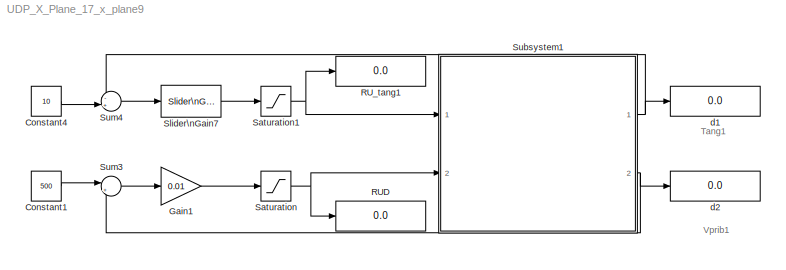
MODEL UDP_X_Plane_17_x_plane9
KIND model
BLOCK [Constant] Constant1
  LockScale = on
  OutDataTypeStr = single
  SID = 153
  Value = 500
BLOCK [Constant] Constant4
  LockScale = on
  OutDataTypeStr = single
  SID = 1
  Value = 10
BLOCK [Gain] Gain1
  Gain = 0.01
  OutDataTypeStr = Inherit: Inherit via internal rule
  ParamDataTypeStr = Inherit: Inherit via internal rule
  SID = 4
  SaturateOnIntegerOverflow = off
BLOCK [Display] RUD
  Decimation = 1
  Lockdown = off
  Ports = [1]
  SID = 7
BLOCK [Display] RU_tang1
  Decimation = 1
  Lockdown = off
  Ports = [1]
  SID = 8
BLOCK [Saturate] Saturation
  InputPortMap = u0
  LowerLimit = 0
  Ports = [1, 1]
  SID = 9
  UpperLimit = 1
BLOCK [Saturate] Saturation1
  InputPortMap = u0
  LowerLimit = -1
  Ports = [1, 1]
  SID = 10
  UpperLimit = 1
BLOCK [Reference] Slider\nGain7  REF=simulink/Math\nOperations/Slider\nGain
  Ports = [1, 1]
  SID = 14
  SourceBlock = simulink/Math\nOperations/Slider\nGain
  SourceType = Slider Gain
  gain = 0.040092
  high = 0.1
  low = -0.1
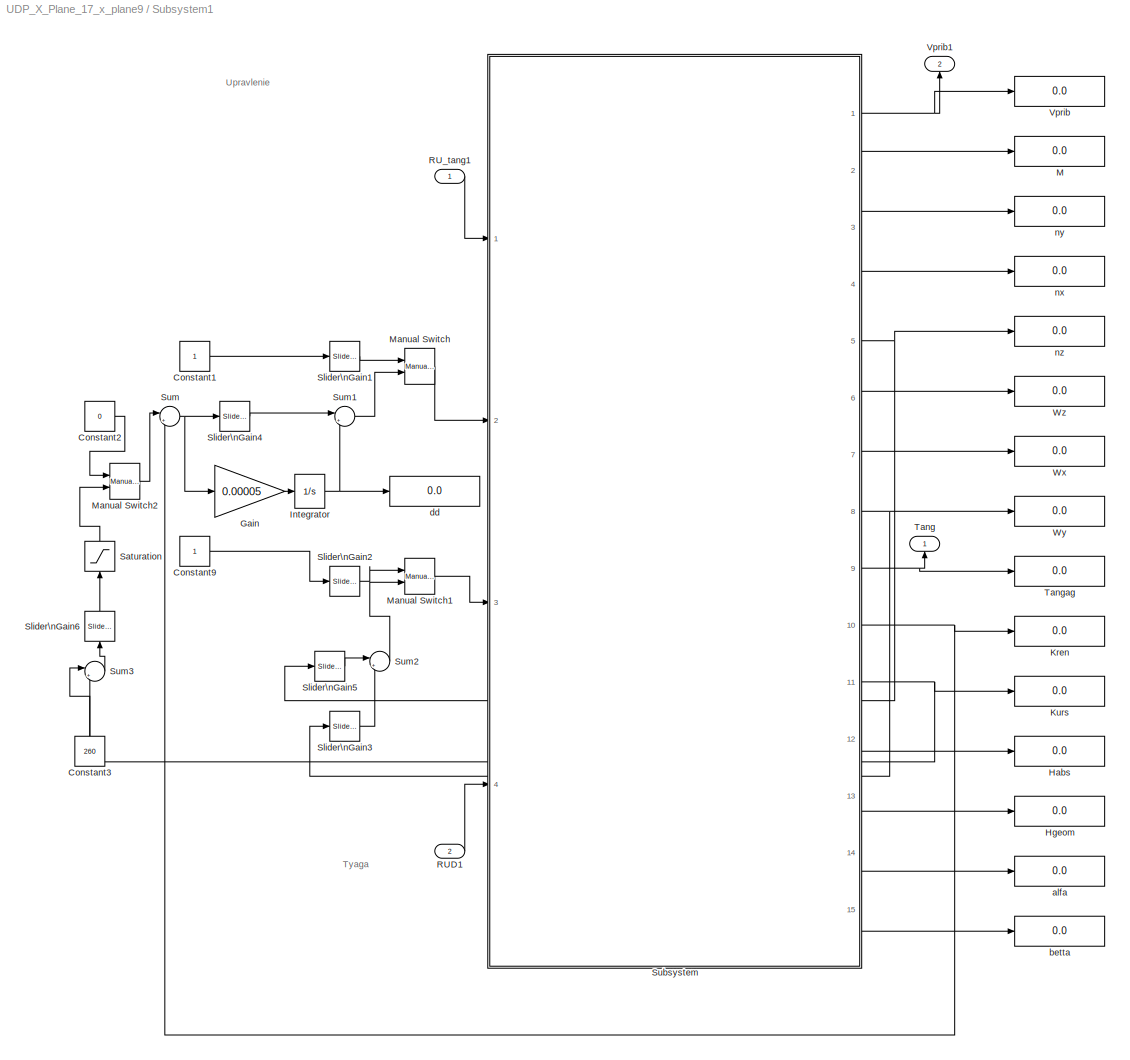
BLOCK [SubSystem] Subsystem1
  FunctionWithSeparateData = off
  MaskHideContents = off
  MinAlgLoopOccurrences = off
  Opaque = off
  Ports = [2, 2]
  PropExecContextOutsideSubsystem = off
  RTWSystemCode = Auto
  RequestExecContextInheritance = off
  SID = 15
BLOCK [Constant] Subsystem1/Constant1
  LockScale = on
  OutDataTypeStr = single
  SID = 18
BLOCK [Constant] Subsystem1/Constant2
  LockScale = on
  OutDataTypeStr = single
  SID = 19
  Value = 0
BLOCK [Constant] Subsystem1/Constant3
  LockScale = on
  OutDataTypeStr = single
  SID = 20
  Value = 260
BLOCK [Constant] Subsystem1/Constant9
  LockScale = on
  OutDataTypeStr = single
  SID = 21
BLOCK [Gain] Subsystem1/Gain
  Gain = 0.00005
  OutDataTypeStr = Inherit: Inherit via internal rule
  ParamDataTypeStr = Inherit: Inherit via internal rule
  SID = 22
  SaturateOnIntegerOverflow = off
BLOCK [Display] Subsystem1/Habs
  Decimation = 1
  Lockdown = off
  Ports = [1]
  SID = 23
BLOCK [Display] Subsystem1/Hgeom
  Decimation = 1
  Lockdown = off
  Ports = [1]
  SID = 24
BLOCK [Integrator] Subsystem1/Integrator
  LimitOutput = on
  LowerSaturationLimit = -1
  Ports = [1, 1]
  SID = 25
  UpperSaturationLimit = 1
BLOCK [Display] Subsystem1/Kren
  Decimation = 1
  Lockdown = off
  Ports = [1]
  SID = 26
BLOCK [Display] Subsystem1/Kurs
  Decimation = 1
  Lockdown = off
  Ports = [1]
  SID = 27
BLOCK [Display] Subsystem1/M
  Decimation = 1
  Lockdown = off
  Ports = [1]
  SID = 28
BLOCK [Reference] Subsystem1/Manual Switch  REF=simulink/Signal\nRouting/Manual Switch
  Ports = [2, 1]
  SID = 29
  SourceBlock = simulink/Signal\nRouting/Manual Switch
  SourceType = Manual Switch
  action = 0
  sw = 0
  varsize = off
BLOCK [Reference] Subsystem1/Manual Switch1  REF=simulink/Signal\nRouting/Manual Switch
  Ports = [2, 1]
  SID = 30
  SourceBlock = simulink/Signal\nRouting/Manual Switch
  SourceType = Manual Switch
  action = 0
  sw = 1
  varsize = off
BLOCK [Reference] Subsystem1/Manual Switch2  REF=simulink/Signal\nRouting/Manual Switch
  Ports = [2, 1]
  SID = 31
  SourceBlock = simulink/Signal\nRouting/Manual Switch
  SourceType = Manual Switch
  action = 0
  sw = 1
  varsize = off
BLOCK [Inport] Subsystem1/RUD1
  IconDisplay = Port number
  Port = 2
  SID = 17
BLOCK [Inport] Subsystem1/RU_tang1
  IconDisplay = Port number
  SID = 16
BLOCK [Saturate] Subsystem1/Saturation
  InputPortMap = u0
  LowerLimit = -45
  Ports = [1, 1]
  SID = 32
  UpperLimit = 45
BLOCK [Reference] Subsystem1/Slider\nGain1  REF=simulink/Math\nOperations/Slider\nGain
  Ports = [1, 1]
  SID = 33
  SourceBlock = simulink/Math\nOperations/Slider\nGain
  SourceType = Slider Gain
  gain = -0.004608
  high = 1
  low = -1
BLOCK [Reference] Subsystem1/Slider\nGain2  REF=simulink/Math\nOperations/Slider\nGain
  Ports = [1, 1]
  SID = 34
  SourceBlock = simulink/Math\nOperations/Slider\nGain
  SourceType = Slider Gain
  gain = 0
  high = 1
  low = -1
BLOCK [Reference] Subsystem1/Slider\nGain3  REF=simulink/Math\nOperations/Slider\nGain
  Ports = [1, 1]
  SID = 35
  SourceBlock = simulink/Math\nOperations/Slider\nGain
  SourceType = Slider Gain
  gain = -5.2074
  high = 10
  low = -10
BLOCK [Reference] Subsystem1/Slider\nGain4  REF=simulink/Math\nOperations/Slider\nGain
  Ports = [1, 1]
  SID = 36
  SourceBlock = simulink/Math\nOperations/Slider\nGain
  SourceType = Slider Gain
  gain = 0.086176
  high = 1.1
  low = -1.1
BLOCK [Reference] Subsystem1/Slider\nGain5  REF=simulink/Math\nOperations/Slider\nGain
  Ports = [1, 1]
  SID = 37
  SourceBlock = simulink/Math\nOperations/Slider\nGain
  SourceType = Slider Gain
  gain = -2.1429
  high = 3
  low = -3
BLOCK [Reference] Subsystem1/Slider\nGain6  REF=simulink/Math\nOperations/Slider\nGain
  Ports = [1, 1]
  SID = 38
  SourceBlock = simulink/Math\nOperations/Slider\nGain
  SourceType = Slider Gain
  gain = 0.5
  high = 1
  low = -1
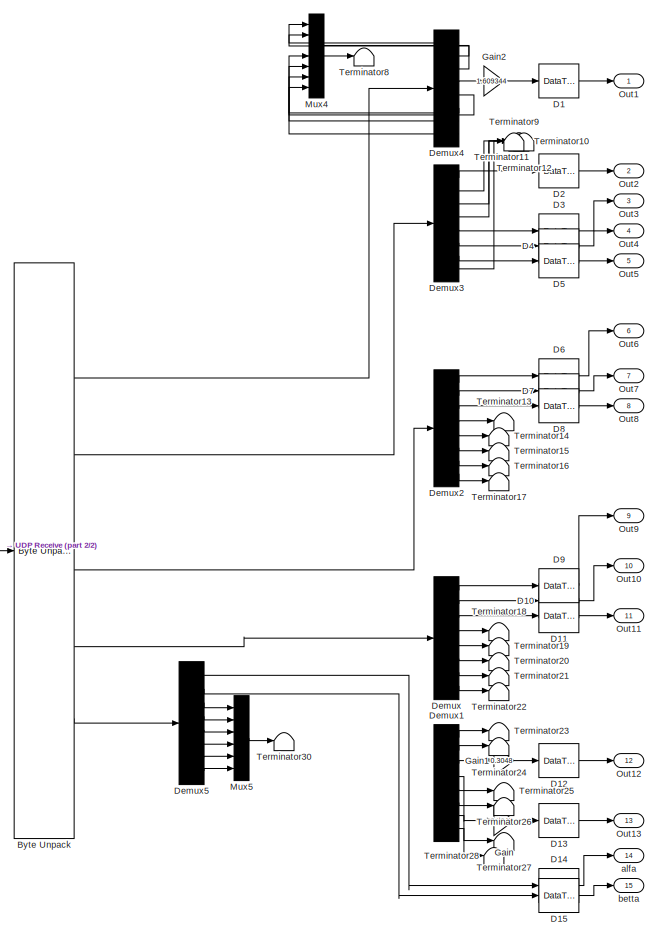
[diagram: Subsystem1/Subsystem - part 1/2, right side, full height]
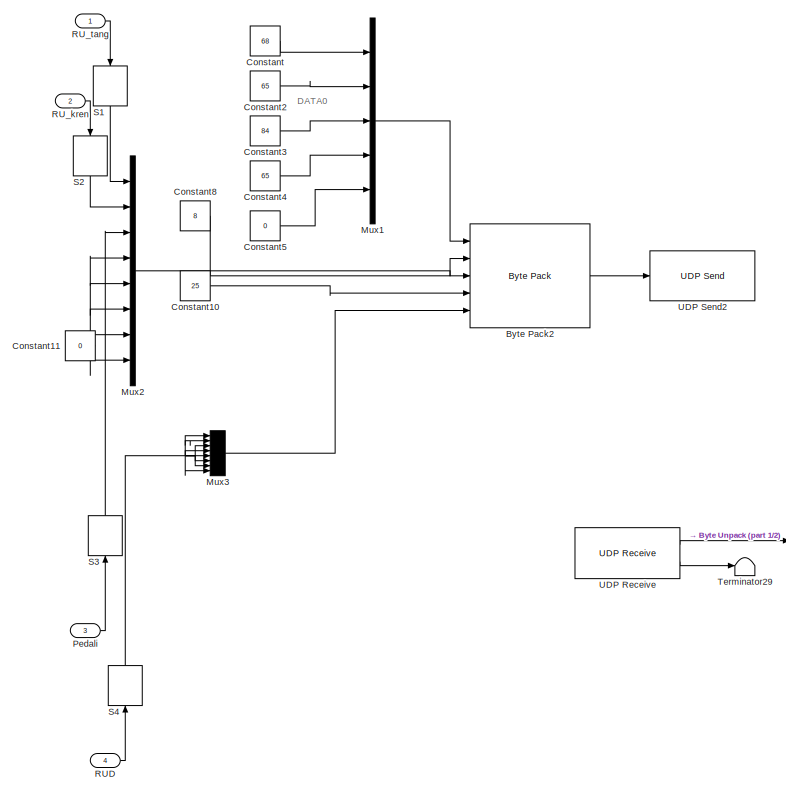
[diagram: Subsystem1/Subsystem - part 2/2, left side, full height]
BLOCK [SubSystem] Subsystem1/Subsystem
  FunctionWithSeparateData = off
  MaskHideContents = off
  MinAlgLoopOccurrences = off
  Opaque = off
  Ports = [4, 15]
  PropExecContextOutsideSubsystem = off
  RTWSystemCode = Auto
  RequestExecContextInheritance = off
  SID = 39
BLOCK [Reference] Subsystem1/Subsystem/Byte Pack2  REF=etargetslib/Byte Pack
  Ports = [5, 1]
  SID = 44
  SourceBlock = etargetslib/Byte Pack
  SourceType = Byte pack
  byteAlign = 1
  datatypes = {'int8','int32','single','int32','single'}
BLOCK [Reference] Subsystem1/Subsystem/Byte Unpack  REF=etargetslib/Byte Unpack
  Ports = [1, 14]
  SID = 45
  SourceBlock = etargetslib/Byte Unpack
  SourceType = Byte Unpack
  byteAlign = 1
  datatypes = {'int8','int32','single','int32','single','int8','int32','single','int32','single','int32','single','int32','single'}
  dimensions = {[5+3*36],[1],[8],[1],[8],[12*36],[1],[8],[1],[8],[1],[8],[1],[8]}
BLOCK [Constant] Subsystem1/Subsystem/Constant
  OutDataTypeStr = int8
  SID = 46
  Value = 68
BLOCK [Constant] Subsystem1/Subsystem/Constant10
  LockScale = on
  OutDataTypeStr = int32
  SID = 47
  Value = 25
BLOCK [Constant] Subsystem1/Subsystem/Constant11
  LockScale = on
  OutDataTypeStr = single
  SID = 48
  Value = 0
BLOCK [Constant] Subsystem1/Subsystem/Constant2
  LockScale = on
  OutDataTypeStr = int8
  SID = 49
  Value = 65
BLOCK [Constant] Subsystem1/Subsystem/Constant3
  OutDataTypeStr = int8
  SID = 50
  Value = 84
BLOCK [Constant] Subsystem1/Subsystem/Constant4
  LockScale = on
  OutDataTypeStr = int8
  SID = 51
  Value = 65
BLOCK [Constant] Subsystem1/Subsystem/Constant5
  LockScale = on
  OutDataTypeStr = int8
  SID = 52
  Value = 0
BLOCK [Constant] Subsystem1/Subsystem/Constant8
  LockScale = on
  OutDataTypeStr = int32
  SID = 53
  Value = 8
BLOCK [DataTypeConversion] Subsystem1/Subsystem/D1
  OutDataTypeStr = double
  RndMeth = Floor
  SID = 54
  SaturateOnIntegerOverflow = off
BLOCK [DataTypeConversion] Subsystem1/Subsystem/D10
  OutDataTypeStr = double
  RndMeth = Floor
  SID = 55
  SaturateOnIntegerOverflow = off
BLOCK [DataTypeConversion] Subsystem1/Subsystem/D11
  OutDataTypeStr = double
  RndMeth = Floor
  SID = 56
  SaturateOnIntegerOverflow = off
BLOCK [DataTypeConversion] Subsystem1/Subsystem/D12
  OutDataTypeStr = double
  RndMeth = Floor
  SID = 57
  SaturateOnIntegerOverflow = off
BLOCK [DataTypeConversion] Subsystem1/Subsystem/D13
  OutDataTypeStr = double
  RndMeth = Floor
  SID = 58
  SaturateOnIntegerOverflow = off
BLOCK [DataTypeConversion] Subsystem1/Subsystem/D14
  OutDataTypeStr = double
  RndMeth = Floor
  SID = 59
  SaturateOnIntegerOverflow = off
BLOCK [DataTypeConversion] Subsystem1/Subsystem/D15
  OutDataTypeStr = double
  RndMeth = Floor
  SID = 60
  SaturateOnIntegerOverflow = off
BLOCK [DataTypeConversion] Subsystem1/Subsystem/D2
  OutDataTypeStr = double
  RndMeth = Floor
  SID = 61
  SaturateOnIntegerOverflow = off
BLOCK [DataTypeConversion] Subsystem1/Subsystem/D3
  OutDataTypeStr = double
  RndMeth = Floor
  SID = 62
  SaturateOnIntegerOverflow = off
BLOCK [DataTypeConversion] Subsystem1/Subsystem/D4
  OutDataTypeStr = double
  RndMeth = Floor
  SID = 63
  SaturateOnIntegerOverflow = off
BLOCK [DataTypeConversion] Subsystem1/Subsystem/D5
  OutDataTypeStr = double
  RndMeth = Floor
  SID = 64
  SaturateOnIntegerOverflow = off
BLOCK [DataTypeConversion] Subsystem1/Subsystem/D6
  OutDataTypeStr = double
  RndMeth = Floor
  SID = 65
  SaturateOnIntegerOverflow = off
BLOCK [DataTypeConversion] Subsystem1/Subsystem/D7
  OutDataTypeStr = double
  RndMeth = Floor
  SID = 66
  SaturateOnIntegerOverflow = off
BLOCK [DataTypeConversion] Subsystem1/Subsystem/D8
  OutDataTypeStr = double
  RndMeth = Floor
  SID = 67
  SaturateOnIntegerOverflow = off
BLOCK [DataTypeConversion] Subsystem1/Subsystem/D9
  OutDataTypeStr = double
  RndMeth = Floor
  SID = 68
  SaturateOnIntegerOverflow = off
BLOCK [Demux] Subsystem1/Subsystem/Demux
  DisplayOption = bar
  Outputs = 8
  Ports = [1, 8]
  SID = 69
BLOCK [Demux] Subsystem1/Subsystem/Demux1
  DisplayOption = bar
  Outputs = 8
  Ports = [1, 8]
  SID = 70
BLOCK [Demux] Subsystem1/Subsystem/Demux2
  DisplayOption = bar
  Outputs = 8
  Ports = [1, 8]
  SID = 71
BLOCK [Demux] Subsystem1/Subsystem/Demux3
  DisplayOption = bar
  Outputs = 8
  Ports = [1, 8]
  SID = 72
BLOCK [Demux] Subsystem1/Subsystem/Demux4
  DisplayOption = bar
  Outputs = 8
  Ports = [1, 8]
  SID = 73
BLOCK [Demux] Subsystem1/Subsystem/Demux5
  DisplayOption = bar
  Outputs = 8
  Ports = [1, 8]
  SID = 74
BLOCK [Gain] Subsystem1/Subsystem/Gain
  Gain = 0.3048
  OutDataTypeStr = Inherit: Inherit via internal rule
  ParamDataTypeStr = Inherit: Inherit via internal rule
  SID = 75
  SaturateOnIntegerOverflow = off
BLOCK [Gain] Subsystem1/Subsystem/Gain1
  Gain = 0.3048
  OutDataTypeStr = Inherit: Inherit via internal rule
  ParamDataTypeStr = Inherit: Inherit via internal rule
  SID = 76
  SaturateOnIntegerOverflow = off
BLOCK [Gain] Subsystem1/Subsystem/Gain2
  Gain = 1.609344
  OutDataTypeStr = Inherit: Inherit via internal rule
  ParamDataTypeStr = Inherit: Inherit via internal rule
  SID = 77
  SaturateOnIntegerOverflow = off
BLOCK [Mux] Subsystem1/Subsystem/Mux1
  DisplayOption = bar
  Inputs = 5
  Ports = [5, 1]
  SID = 78
BLOCK [Mux] Subsystem1/Subsystem/Mux2
  DisplayOption = bar
  Inputs = 8
  Ports = [8, 1]
  SID = 79
BLOCK [Mux] Subsystem1/Subsystem/Mux3
  DisplayOption = bar
  Inputs = 8
  Ports = [8, 1]
  SID = 80
BLOCK [Mux] Subsystem1/Subsystem/Mux4
  DisplayOption = bar
  Inputs = 7
  Ports = [7, 1]
  SID = 81
BLOCK [Mux] Subsystem1/Subsystem/Mux5
  DisplayOption = bar
  Inputs = 6
  Ports = [6, 1]
  SID = 82
BLOCK [Outport] Subsystem1/Subsystem/Out1
  IconDisplay = Port number
  SID = 117
BLOCK [Outport] Subsystem1/Subsystem/Out10
  IconDisplay = Port number
  Port = 10
  SID = 126
BLOCK [Outport] Subsystem1/Subsystem/Out11
  IconDisplay = Port number
  Port = 11
  SID = 127
BLOCK [Outport] Subsystem1/Subsystem/Out12
  IconDisplay = Port number
  Port = 12
  SID = 128
BLOCK [Outport] Subsystem1/Subsystem/Out13
  IconDisplay = Port number
  Port = 13
  SID = 129
BLOCK [Outport] Subsystem1/Subsystem/Out2
  IconDisplay = Port number
  Port = 2
  SID = 118
BLOCK [Outport] Subsystem1/Subsystem/Out3
  IconDisplay = Port number
  Port = 3
  SID = 119
BLOCK [Outport] Subsystem1/Subsystem/Out4
  IconDisplay = Port number
  Port = 4
  SID = 120
BLOCK [Outport] Subsystem1/Subsystem/Out5
  IconDisplay = Port number
  Port = 5
  SID = 121
BLOCK [Outport] Subsystem1/Subsystem/Out6
  IconDisplay = Port number
  Port = 6
  SID = 122
BLOCK [Outport] Subsystem1/Subsystem/Out7
  IconDisplay = Port number
  Port = 7
  SID = 123
BLOCK [Outport] Subsystem1/Subsystem/Out8
  IconDisplay = Port number
  Port = 8
  SID = 124
BLOCK [Outport] Subsystem1/Subsystem/Out9
  IconDisplay = Port number
  Port = 9
  SID = 125
BLOCK [Inport] Subsystem1/Subsystem/Pedali
  IconDisplay = Port number
  Port = 3
  SID = 42
BLOCK [Inport] Subsystem1/Subsystem/RUD
  IconDisplay = Port number
  Port = 4
  SID = 43
BLOCK [Inport] Subsystem1/Subsystem/RU_kren
  IconDisplay = Port number
  Port = 2
  SID = 41
BLOCK [Inport] Subsystem1/Subsystem/RU_tang
  IconDisplay = Port number
  SID = 40
BLOCK [DataTypeConversion] Subsystem1/Subsystem/S1
  OutDataTypeStr = single
  RndMeth = Floor
  SID = 84
  SaturateOnIntegerOverflow = off
BLOCK [DataTypeConversion] Subsystem1/Subsystem/S2
  OutDataTypeStr = single
  RndMeth = Floor
  SID = 85
  SaturateOnIntegerOverflow = off
BLOCK [DataTypeConversion] Subsystem1/Subsystem/S3
  OutDataTypeStr = single
  RndMeth = Floor
  SID = 86
  SaturateOnIntegerOverflow = off
BLOCK [DataTypeConversion] Subsystem1/Subsystem/S4
  OutDataTypeStr = single
  RndMeth = Floor
  SID = 87
  SaturateOnIntegerOverflow = off
BLOCK [Terminator] Subsystem1/Subsystem/Terminator10
  SID = 89
BLOCK [Terminator] Subsystem1/Subsystem/Terminator11
  SID = 90
BLOCK [Terminator] Subsystem1/Subsystem/Terminator12
  SID = 91
BLOCK [Terminator] Subsystem1/Subsystem/Terminator13
  SID = 92
BLOCK [Terminator] Subsystem1/Subsystem/Terminator14
  SID = 93
BLOCK [Terminator] Subsystem1/Subsystem/Terminator15
  SID = 94
BLOCK [Terminator] Subsystem1/Subsystem/Terminator16
  SID = 95
BLOCK [Terminator] Subsystem1/Subsystem/Terminator17
  SID = 96
BLOCK [Terminator] Subsystem1/Subsystem/Terminator18
  SID = 97
BLOCK [Terminator] Subsystem1/Subsystem/Terminator19
  SID = 98
BLOCK [Terminator] Subsystem1/Subsystem/Terminator20
  SID = 100
BLOCK [Terminator] Subsystem1/Subsystem/Terminator21
  SID = 101
BLOCK [Terminator] Subsystem1/Subsystem/Terminator22
  SID = 102
BLOCK [Terminator] Subsystem1/Subsystem/Terminator23
  SID = 103
BLOCK [Terminator] Subsystem1/Subsystem/Terminator24
  SID = 104
BLOCK [Terminator] Subsystem1/Subsystem/Terminator25
  SID = 105
BLOCK [Terminator] Subsystem1/Subsystem/Terminator26
  SID = 106
BLOCK [Terminator] Subsystem1/Subsystem/Terminator27
  SID = 107
BLOCK [Terminator] Subsystem1/Subsystem/Terminator28
  SID = 108
BLOCK [Terminator] Subsystem1/Subsystem/Terminator29
  SID = 109
BLOCK [Terminator] Subsystem1/Subsystem/Terminator30
  SID = 111
BLOCK [Terminator] Subsystem1/Subsystem/Terminator8
  SID = 113
BLOCK [Terminator] Subsystem1/Subsystem/Terminator9
  SID = 114
BLOCK [Reference] Subsystem1/Subsystem/UDP Receive  REF=dspnetwork/UDP Receive
  Ports = [0, 2]
  SID = 115
  SourceBlock = dspnetwork/UDP Receive
  SourceType = UDP Receive
  blockingTime = 0
  dims = 720+5+36
  isVarSize = off
  localPort = 4444
  localURL = '0.0.0.0'
  recvBufferSize = 8192
  remotePort = -1
  remoteURL = '127.0.0.1'
  sampletime = inf
  showBlockingTime = off
  signalDatatype = uint8
BLOCK [Reference] Subsystem1/Subsystem/UDP Send2  REF=dspnetwork/UDP Send
  Ports = [1]
  SID = 116
  SourceBlock = dspnetwork/UDP Send
  SourceType = UDP Send
  localPort = 4444
  localPortSource = Automatically determine
  localURL = '0.0.0.0'
  remotePort = 49000
  remoteURL = '127.0.0.1'
  sampletime = -1
  separateLengthPort = 0
BLOCK [Outport] Subsystem1/Subsystem/alfa
  IconDisplay = Port number
  Port = 14
  SID = 130
BLOCK [Outport] Subsystem1/Subsystem/betta
  IconDisplay = Port number
  Port = 15
  SID = 131
BLOCK [Sum] Subsystem1/Sum
  IconShape = round
  InputSameDT = off
  Inputs = |+-
  OutDataTypeStr = Inherit: Inherit via internal rule
  Ports = [2, 1]
  SID = 132
  SaturateOnIntegerOverflow = off
BLOCK [Sum] Subsystem1/Sum1
  IconShape = round
  InputSameDT = off
  Inputs = |++
  OutDataTypeStr = Inherit: Inherit via internal rule
  Ports = [2, 1]
  SID = 133
  SaturateOnIntegerOverflow = off
BLOCK [Sum] Subsystem1/Sum2
  IconShape = round
  InputSameDT = off
  Inputs = |++
  OutDataTypeStr = Inherit: Inherit via internal rule
  Ports = [2, 1]
  SID = 134
  SaturateOnIntegerOverflow = off
BLOCK [Sum] Subsystem1/Sum3
  IconShape = round
  InputSameDT = off
  Inputs = |+-
  OutDataTypeStr = Inherit: Inherit via internal rule
  Ports = [2, 1]
  SID = 135
  SaturateOnIntegerOverflow = off
BLOCK [Outport] Subsystem1/Tang
  IconDisplay = Port number
  SID = 147
BLOCK [Display] Subsystem1/Tangag
  Decimation = 1
  Lockdown = off
  Ports = [1]
  SID = 136
BLOCK [Display] Subsystem1/Vprib
  Decimation = 1
  Lockdown = off
  Ports = [1]
  SID = 137
BLOCK [Outport] Subsystem1/Vprib1
  IconDisplay = Port number
  Port = 2
  SID = 148
BLOCK [Display] Subsystem1/Wx
  Decimation = 1
  Lockdown = off
  Ports = [1]
  SID = 138
BLOCK [Display] Subsystem1/Wy
  Decimation = 1
  Lockdown = off
  Ports = [1]
  SID = 139
BLOCK [Display] Subsystem1/Wz
  Decimation = 1
  Lockdown = off
  Ports = [1]
  SID = 140
BLOCK [Display] Subsystem1/alfa
  Decimation = 1
  Lockdown = off
  Ports = [1]
  SID = 141
BLOCK [Display] Subsystem1/betta
  Decimation = 1
  Lockdown = off
  Ports = [1]
  SID = 142
BLOCK [Display] Subsystem1/dd
  Decimation = 1
  Lockdown = off
  Ports = [1]
  SID = 143
BLOCK [Display] Subsystem1/nx
  Decimation = 1
  Lockdown = off
  Ports = [1]
  SID = 144
BLOCK [Display] Subsystem1/ny
  Decimation = 1
  Lockdown = off
  Ports = [1]
  SID = 145
BLOCK [Display] Subsystem1/nz
  Decimation = 1
  Lockdown = off
  Ports = [1]
  SID = 146
BLOCK [Sum] Sum3
  IconShape = round
  InputSameDT = off
  Inputs = |+-
  OutDataTypeStr = Inherit: Inherit via internal rule
  Ports = [2, 1]
  SID = 149
  SaturateOnIntegerOverflow = off
BLOCK [Sum] Sum4
  IconShape = round
  InputSameDT = off
  Inputs = -+|
  OutDataTypeStr = Inherit: Inherit via internal rule
  Ports = [2, 1]
  SID = 150
  SaturateOnIntegerOverflow = off
BLOCK [Display] d1
  Decimation = 1
  Lockdown = off
  Ports = [1]
  SID = 151
BLOCK [Display] d2
  Decimation = 1
  Lockdown = off
  Ports = [1]
  SID = 152
ANNOTATION (root): Tang1
ANNOTATION (root): Vprib1
ANNOTATION Subsystem1: Tyaga
ANNOTATION Subsystem1: Upravlenie
ANNOTATION Subsystem1/Subsystem: DATA0
LINE Constant1:1 -> Sum3:1
LINE Constant4:1 -> Sum4:2
LINE Gain1:1 -> Saturation:1
NET Saturation1:1 -> RU_tang1:1, Subsystem1:1
NET Saturation:1 -> RUD:1, Subsystem1:2
LINE Slider\nGain7:1 -> Saturation1:1
LINE Subsystem1/Constant1:1 -> Subsystem1/Slider\nGain1:1
LINE Subsystem1/Constant2:1 -> Subsystem1/Manual Switch2:1
LINE Subsystem1/Constant3:1 -> Subsystem1/Sum3:1
LINE Subsystem1/Constant9:1 -> Subsystem1/Slider\nGain2:1
LINE Subsystem1/Gain:1 -> Subsystem1/Integrator:1
NET Subsystem1/Integrator:1 -> Subsystem1/Sum1:2, Subsystem1/dd:1
LINE Subsystem1/Manual Switch1:1 -> Subsystem1/Subsystem:3
LINE Subsystem1/Manual Switch2:1 -> Subsystem1/Sum:1
LINE Subsystem1/Manual Switch:1 -> Subsystem1/Subsystem:2
LINE Subsystem1/RUD1:1 -> Subsystem1/Subsystem:4
LINE Subsystem1/RU_tang1:1 -> Subsystem1/Subsystem:1
LINE Subsystem1/Saturation:1 -> Subsystem1/Manual Switch2:2
LINE Subsystem1/Slider\nGain1:1 -> Subsystem1/Manual Switch:1
LINE Subsystem1/Slider\nGain2:1 -> Subsystem1/Manual Switch1:1
LINE Subsystem1/Slider\nGain3:1 -> Subsystem1/Sum2:2
LINE Subsystem1/Slider\nGain4:1 -> Subsystem1/Sum1:1
LINE Subsystem1/Slider\nGain5:1 -> Subsystem1/Sum2:1
LINE Subsystem1/Slider\nGain6:1 -> Subsystem1/Saturation:1
LINE Subsystem1/Subsystem/Byte Pack2:1 -> Subsystem1/Subsystem/UDP Send2:1
LINE Subsystem1/Subsystem/Byte Unpack:10 -> Subsystem1/Subsystem/Demux:1
LINE Subsystem1/Subsystem/Byte Unpack:12 -> Subsystem1/Subsystem/Demux5:1
LINE Subsystem1/Subsystem/Byte Unpack:3 -> Subsystem1/Subsystem/Demux4:1
LINE Subsystem1/Subsystem/Byte Unpack:5 -> Subsystem1/Subsystem/Demux3:1
LINE Subsystem1/Subsystem/Byte Unpack:8 -> Subsystem1/Subsystem/Demux2:1
LINE Subsystem1/Subsystem/Constant10:1 -> Subsystem1/Subsystem/Byte Pack2:4
NET Subsystem1/Subsystem/Constant11:1 -> Subsystem1/Subsystem/Mux2:4, Subsystem1/Subsystem/Mux2:5, Subsystem1/Subsystem/Mux2:6, Subsystem1/Subsystem/Mux2:7, Subsystem1/Subsystem/Mux2:8
LINE Subsystem1/Subsystem/Constant2:1 -> Subsystem1/Subsystem/Mux1:2
LINE Subsystem1/Subsystem/Constant3:1 -> Subsystem1/Subsystem/Mux1:3
LINE Subsystem1/Subsystem/Constant4:1 -> Subsystem1/Subsystem/Mux1:4
LINE Subsystem1/Subsystem/Constant5:1 -> Subsystem1/Subsystem/Mux1:5
LINE Subsystem1/Subsystem/Constant8:1 -> Subsystem1/Subsystem/Byte Pack2:2
LINE Subsystem1/Subsystem/Constant:1 -> Subsystem1/Subsystem/Mux1:1
LINE Subsystem1/Subsystem/D10:1 -> Subsystem1/Subsystem/Out10:1
LINE Subsystem1/Subsystem/D11:1 -> Subsystem1/Subsystem/Out11:1
LINE Subsystem1/Subsystem/D12:1 -> Subsystem1/Subsystem/Out12:1
LINE Subsystem1/Subsystem/D13:1 -> Subsystem1/Subsystem/Out13:1
LINE Subsystem1/Subsystem/D14:1 -> Subsystem1/Subsystem/alfa:1
LINE Subsystem1/Subsystem/D15:1 -> Subsystem1/Subsystem/betta:1
LINE Subsystem1/Subsystem/D1:1 -> Subsystem1/Subsystem/Out1:1
LINE Subsystem1/Subsystem/D2:1 -> Subsystem1/Subsystem/Out2:1
LINE Subsystem1/Subsystem/D3:1 -> Subsystem1/Subsystem/Out3:1
LINE Subsystem1/Subsystem/D4:1 -> Subsystem1/Subsystem/Out4:1
LINE Subsystem1/Subsystem/D5:1 -> Subsystem1/Subsystem/Out5:1
LINE Subsystem1/Subsystem/D6:1 -> Subsystem1/Subsystem/Out6:1
LINE Subsystem1/Subsystem/D7:1 -> Subsystem1/Subsystem/Out7:1
LINE Subsystem1/Subsystem/D8:1 -> Subsystem1/Subsystem/Out8:1
LINE Subsystem1/Subsystem/D9:1 -> Subsystem1/Subsystem/Out9:1
LINE Subsystem1/Subsystem/Demux1:1 -> Subsystem1/Subsystem/Terminator23:1
LINE Subsystem1/Subsystem/Demux1:2 -> Subsystem1/Subsystem/Terminator24:1
LINE Subsystem1/Subsystem/Demux1:3 -> Subsystem1/Subsystem/Gain1:1
LINE Subsystem1/Subsystem/Demux1:4 -> Subsystem1/Subsystem/Gain:1
LINE Subsystem1/Subsystem/Demux1:5 -> Subsystem1/Subsystem/Terminator25:1
LINE Subsystem1/Subsystem/Demux1:6 -> Subsystem1/Subsystem/Terminator26:1
LINE Subsystem1/Subsystem/Demux1:7 -> Subsystem1/Subsystem/Terminator27:1
LINE Subsystem1/Subsystem/Demux1:8 -> Subsystem1/Subsystem/Terminator28:1
LINE Subsystem1/Subsystem/Demux2:1 -> Subsystem1/Subsystem/D6:1
LINE Subsystem1/Subsystem/Demux2:2 -> Subsystem1/Subsystem/D7:1
LINE Subsystem1/Subsystem/Demux2:3 -> Subsystem1/Subsystem/D8:1
LINE Subsystem1/Subsystem/Demux2:4 -> Subsystem1/Subsystem/Terminator13:1
LINE Subsystem1/Subsystem/Demux2:5 -> Subsystem1/Subsystem/Terminator14:1
LINE Subsystem1/Subsystem/Demux2:6 -> Subsystem1/Subsystem/Terminator15:1
LINE Subsystem1/Subsystem/Demux2:7 -> Subsystem1/Subsystem/Terminator16:1
LINE Subsystem1/Subsystem/Demux2:8 -> Subsystem1/Subsystem/Terminator17:1
LINE Subsystem1/Subsystem/Demux3:1 -> Subsystem1/Subsystem/D2:1
LINE Subsystem1/Subsystem/Demux3:2 -> Subsystem1/Subsystem/Terminator9:1
LINE Subsystem1/Subsystem/Demux3:3 -> Subsystem1/Subsystem/Terminator10:1
LINE Subsystem1/Subsystem/Demux3:4 -> Subsystem1/Subsystem/Terminator11:1
LINE Subsystem1/Subsystem/Demux3:5 -> Subsystem1/Subsystem/D3:1
LINE Subsystem1/Subsystem/Demux3:6 -> Subsystem1/Subsystem/D4:1
LINE Subsystem1/Subsystem/Demux3:7 -> Subsystem1/Subsystem/D5:1
LINE Subsystem1/Subsystem/Demux3:8 -> Subsystem1/Subsystem/Terminator12:1
LINE Subsystem1/Subsystem/Demux4:1 -> Subsystem1/Subsystem/Mux4:1
LINE Subsystem1/Subsystem/Demux4:2 -> Subsystem1/Subsystem/Mux4:2
LINE Subsystem1/Subsystem/Demux4:3 -> Subsystem1/Subsystem/Mux4:3
LINE Subsystem1/Subsystem/Demux4:4 -> Subsystem1/Subsystem/Gain2:1
LINE Subsystem1/Subsystem/Demux4:5 -> Subsystem1/Subsystem/Mux4:4
LINE Subsystem1/Subsystem/Demux4:6 -> Subsystem1/Subsystem/Mux4:5
LINE Subsystem1/Subsystem/Demux4:7 -> Subsystem1/Subsystem/Mux4:6
LINE Subsystem1/Subsystem/Demux4:8 -> Subsystem1/Subsystem/Mux4:7
LINE Subsystem1/Subsystem/Demux5:1 -> Subsystem1/Subsystem/D14:1
LINE Subsystem1/Subsystem/Demux5:2 -> Subsystem1/Subsystem/D15:1
LINE Subsystem1/Subsystem/Demux5:3 -> Subsystem1/Subsystem/Mux5:1
LINE Subsystem1/Subsystem/Demux5:4 -> Subsystem1/Subsystem/Mux5:2
LINE Subsystem1/Subsystem/Demux5:5 -> Subsystem1/Subsystem/Mux5:3
LINE Subsystem1/Subsystem/Demux5:6 -> Subsystem1/Subsystem/Mux5:4
LINE Subsystem1/Subsystem/Demux5:7 -> Subsystem1/Subsystem/Mux5:5
LINE Subsystem1/Subsystem/Demux5:8 -> Subsystem1/Subsystem/Mux5:6
LINE Subsystem1/Subsystem/Demux:1 -> Subsystem1/Subsystem/D9:1
LINE Subsystem1/Subsystem/Demux:2 -> Subsystem1/Subsystem/D10:1
LINE Subsystem1/Subsystem/Demux:3 -> Subsystem1/Subsystem/D11:1
LINE Subsystem1/Subsystem/Demux:4 -> Subsystem1/Subsystem/Terminator18:1
LINE Subsystem1/Subsystem/Demux:5 -> Subsystem1/Subsystem/Terminator19:1
LINE Subsystem1/Subsystem/Demux:6 -> Subsystem1/Subsystem/Terminator20:1
LINE Subsystem1/Subsystem/Demux:7 -> Subsystem1/Subsystem/Terminator21:1
LINE Subsystem1/Subsystem/Demux:8 -> Subsystem1/Subsystem/Terminator22:1
LINE Subsystem1/Subsystem/Gain1:1 -> Subsystem1/Subsystem/D12:1
LINE Subsystem1/Subsystem/Gain2:1 -> Subsystem1/Subsystem/D1:1
LINE Subsystem1/Subsystem/Gain:1 -> Subsystem1/Subsystem/D13:1
LINE Subsystem1/Subsystem/Mux1:1 -> Subsystem1/Subsystem/Byte Pack2:1
LINE Subsystem1/Subsystem/Mux2:1 -> Subsystem1/Subsystem/Byte Pack2:3
LINE Subsystem1/Subsystem/Mux3:1 -> Subsystem1/Subsystem/Byte Pack2:5
LINE Subsystem1/Subsystem/Mux4:1 -> Subsystem1/Subsystem/Terminator8:1
LINE Subsystem1/Subsystem/Mux5:1 -> Subsystem1/Subsystem/Terminator30:1
LINE Subsystem1/Subsystem/Pedali:1 -> Subsystem1/Subsystem/S3:1
LINE Subsystem1/Subsystem/RUD:1 -> Subsystem1/Subsystem/S4:1
LINE Subsystem1/Subsystem/RU_kren:1 -> Subsystem1/Subsystem/S2:1
LINE Subsystem1/Subsystem/RU_tang:1 -> Subsystem1/Subsystem/S1:1
LINE Subsystem1/Subsystem/S1:1 -> Subsystem1/Subsystem/Mux2:1
LINE Subsystem1/Subsystem/S2:1 -> Subsystem1/Subsystem/Mux2:2
LINE Subsystem1/Subsystem/S3:1 -> Subsystem1/Subsystem/Mux2:3
NET Subsystem1/Subsystem/S4:1 -> Subsystem1/Subsystem/Mux3:1, Subsystem1/Subsystem/Mux3:2, Subsystem1/Subsystem/Mux3:3, Subsystem1/Subsystem/Mux3:4, Subsystem1/Subsystem/Mux3:5, Subsystem1/Subsystem/Mux3:6, Subsystem1/Subsystem/Mux3:7, Subsystem1/Subsystem/Mux3:8
LINE Subsystem1/Subsystem/UDP Receive:1 -> Subsystem1/Subsystem/Byte Unpack:1
LINE Subsystem1/Subsystem/UDP Receive:2 -> Subsystem1/Subsystem/Terminator29:1
NET Subsystem1/Subsystem:1 -> Subsystem1/Vprib1:1, Subsystem1/Vprib:1
NET Subsystem1/Subsystem:10 -> Subsystem1/Kren:1, Subsystem1/Sum:2
NET Subsystem1/Subsystem:11 -> Subsystem1/Kurs:1, Subsystem1/Sum3:2
LINE Subsystem1/Subsystem:12 -> Subsystem1/Habs:1
LINE Subsystem1/Subsystem:13 -> Subsystem1/Hgeom:1
LINE Subsystem1/Subsystem:14 -> Subsystem1/alfa:1
LINE Subsystem1/Subsystem:15 -> Subsystem1/betta:1
LINE Subsystem1/Subsystem:2 -> Subsystem1/M:1
LINE Subsystem1/Subsystem:3 -> Subsystem1/ny:1
LINE Subsystem1/Subsystem:4 -> Subsystem1/nx:1
NET Subsystem1/Subsystem:5 -> Subsystem1/Slider\nGain5:1, Subsystem1/nz:1
LINE Subsystem1/Subsystem:6 -> Subsystem1/Wz:1
LINE Subsystem1/Subsystem:7 -> Subsystem1/Wx:1
NET Subsystem1/Subsystem:8 -> Subsystem1/Slider\nGain3:1, Subsystem1/Wy:1
NET Subsystem1/Subsystem:9 -> Subsystem1/Tang:1, Subsystem1/Tangag:1
LINE Subsystem1/Sum1:1 -> Subsystem1/Manual Switch:2
LINE Subsystem1/Sum2:1 -> Subsystem1/Manual Switch1:2
LINE Subsystem1/Sum3:1 -> Subsystem1/Slider\nGain6:1
NET Subsystem1/Sum:1 -> Subsystem1/Gain:1, Subsystem1/Slider\nGain4:1
NET Subsystem1:1 -> Sum4:1, d1:1
NET Subsystem1:2 -> Sum3:2, d2:1
LINE Sum3:1 -> Gain1:1
LINE Sum4:1 -> Slider\nGain7:1
note: NET lines group one-source signal fan-out (src -> all destinations, sorted); 1:1 wires keep LINE
